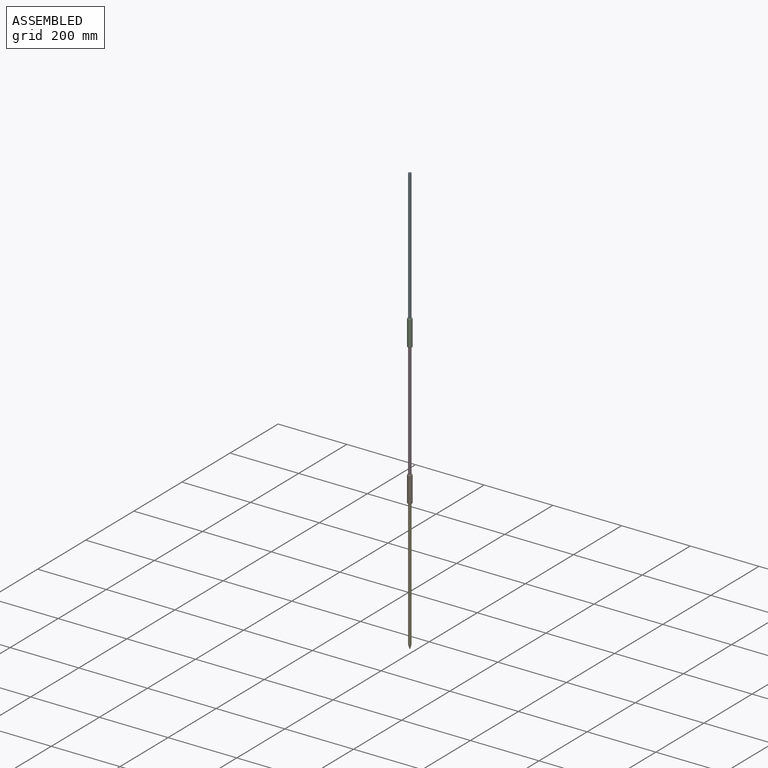
[diagram: assembled view]
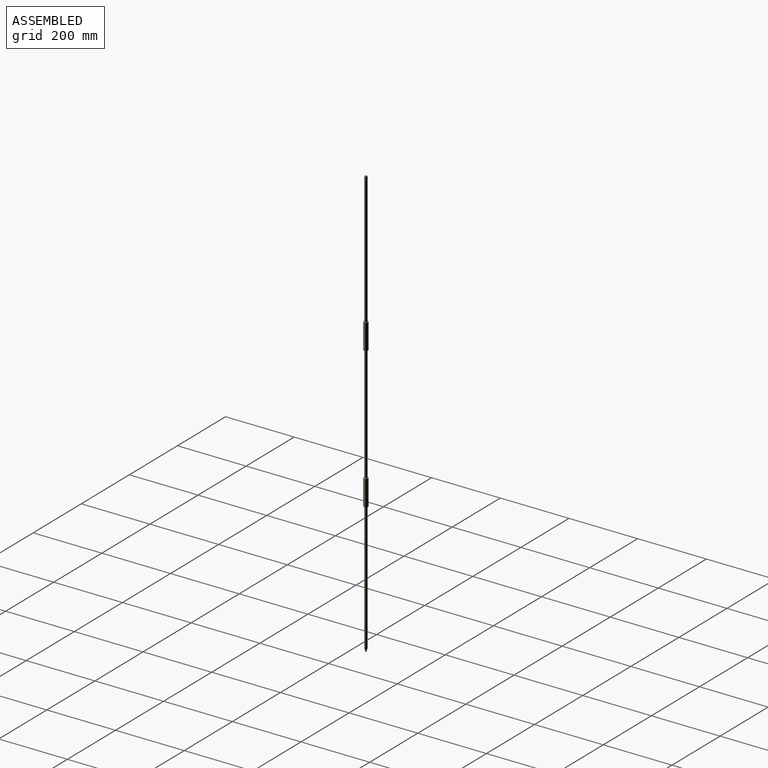
[diagram: assembled view, second angle]
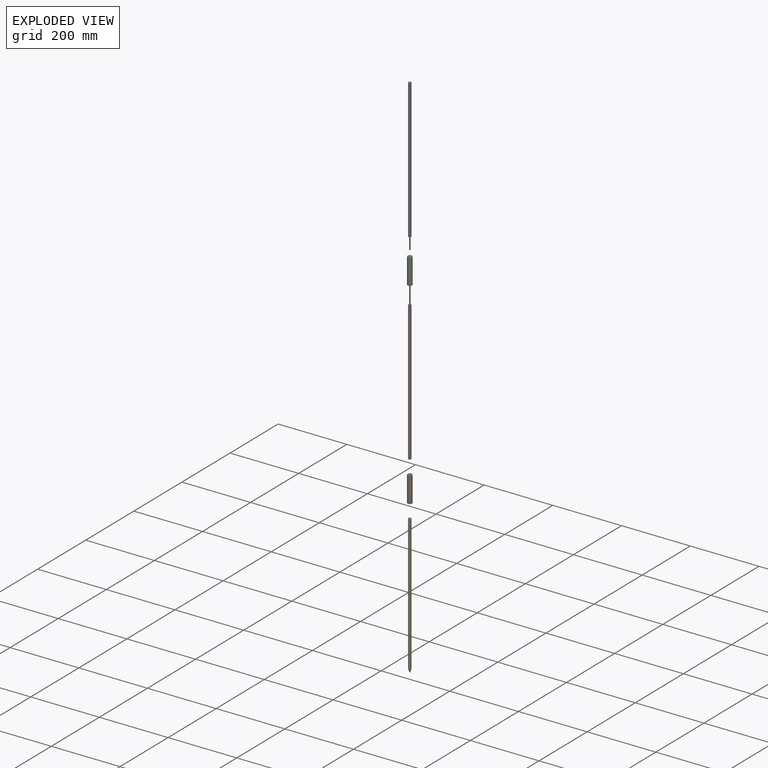
[diagram: exploded view]
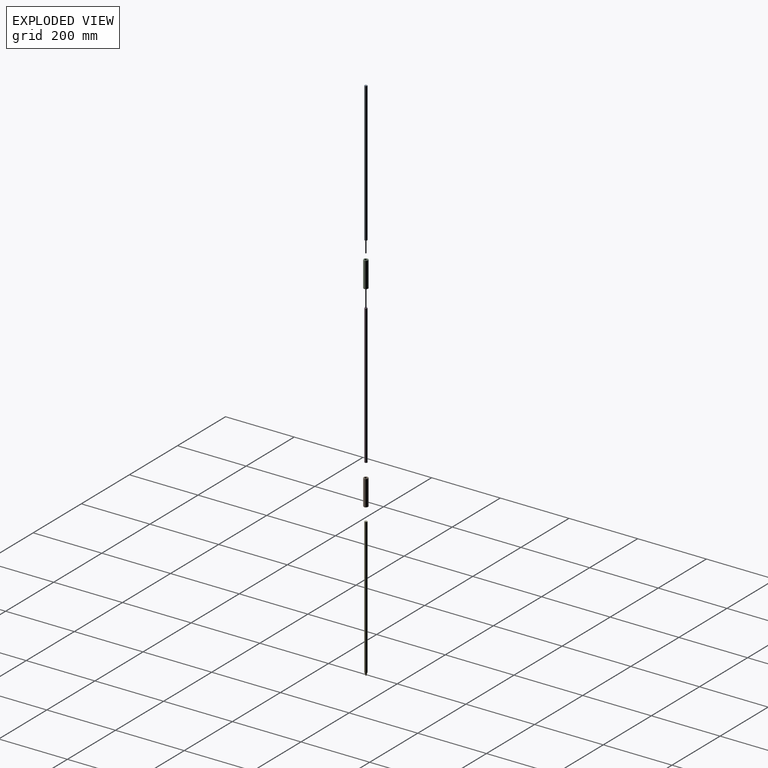
[diagram: exploded view, second angle]
ASSEMBLY  parts=5 mates=4
PART A: 3 faces, bbox 7.9x7.9x406.4 mm
  f0: cylinder r=3.96mm len=406.4mm, axis (0,0,-1), area 10117.9mm2, adj f1,f2
  f1: plane 7.92x7.92mm, normal (0,0,1), area 49.3mm2, adj f0
  f2: plane 7.92x7.92mm, normal (0,0,-1), area 49.3mm2, adj f0
PART B: 10 faces, bbox 14.3x14.3x76.2 mm
  f0: cylinder r=6.6mm len=73.66mm, axis (0,0,-1), area 3056.5mm2, adj f8,f9
  f1: plane 10.67x10.67mm, normal (0,0,1), area 4.2mm2, adj f7,f9
  f2: cylinder r=4.06mm len=35.56mm, axis (0,0,-1), area 908mm2, adj f3,f8
  f3: plane 8.13x8.13mm, normal (0,0,-1), area 40.5mm2, adj f2,f6
  f4: cylinder r=3.94mm len=35.56mm, axis (0,0,1), area 879.6mm2, adj f5,f7
  f5: plane 7.87x7.87mm, normal (0,0,1), area 37.3mm2, adj f4,f6
  f6: cylinder r=1.91mm len=3.81mm, axis (0,0,1), area 30.4mm2, adj f3,f5
  f7: torus R=5.21mm, axis (0,0,1), area 55.1mm2, adj f1,f4
  f8: torus R=5.33mm, axis (0,0,1), area 133.7mm2, adj f0,f2
  f9: torus R=5.33mm, axis (0,0,1), area 77mm2, adj f0,f1
PART C: same geometry as B
PART D: same geometry as A
PART E: 4 faces, bbox 7.9x7.9x406.4 mm
  f0: cylinder r=3.96mm len=396.63mm, axis (0,0,-1), area 9874.7mm2, adj f1,f2
  f1: plane 7.92x7.92mm, normal (0,0,1), area 49.3mm2, adj f0
  f2: cone r=0.65mm half-angle=18.7deg, axis (0,0,1), area 149.6mm2, adj f0,f3
  f3: plane 1.31x1.31mm, normal (0,0,-1), area 1.3mm2, adj f2
PLACE A t=(-7.07,44.16,140.54)mm fixed
PLACE B rot(axis=(0,0,-1),0.2deg) t=(-7.07,44.16,-322.75)mm
PLACE C rot(axis=(0,0,-1),1.7deg) t=(-7.07,44.16,88.47)mm
PLACE D rot(axis=(0,0,-1),0.2deg) t=(-7.07,44.16,-294.11)mm
PLACE E rot(axis=(0,0,-1),0.2deg) t=(-7.07,44.16,-705.85)mm
MATE cylindrical B.f0 <-> D.f0  axis (0,0,-1) through (-7.07,44.16,-284.65)mm
MATE cylindrical B.f2 <-> E.f0  axis (0,0,-1) through (-7.07,44.16,-285.92)mm
MATE cylindrical A.f0 <-> C.f4  axis (0,0,-1) through (-7.07,44.16,140.54)mm
MATE cylindrical D.f0 <-> C.f2  axis (0,0,-1) through (-7.07,44.16,112.29)mm
